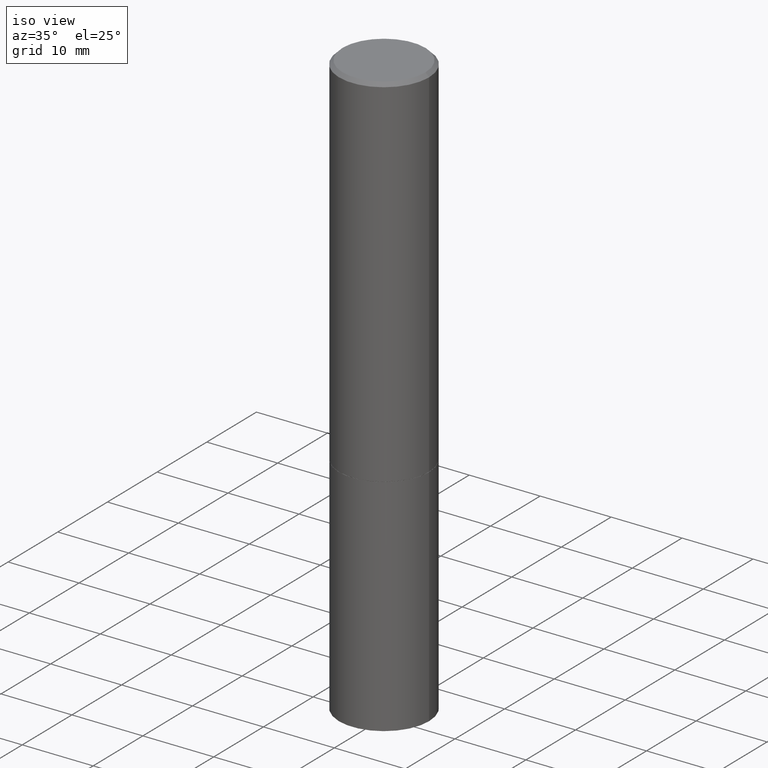
[diagram: clean part render]
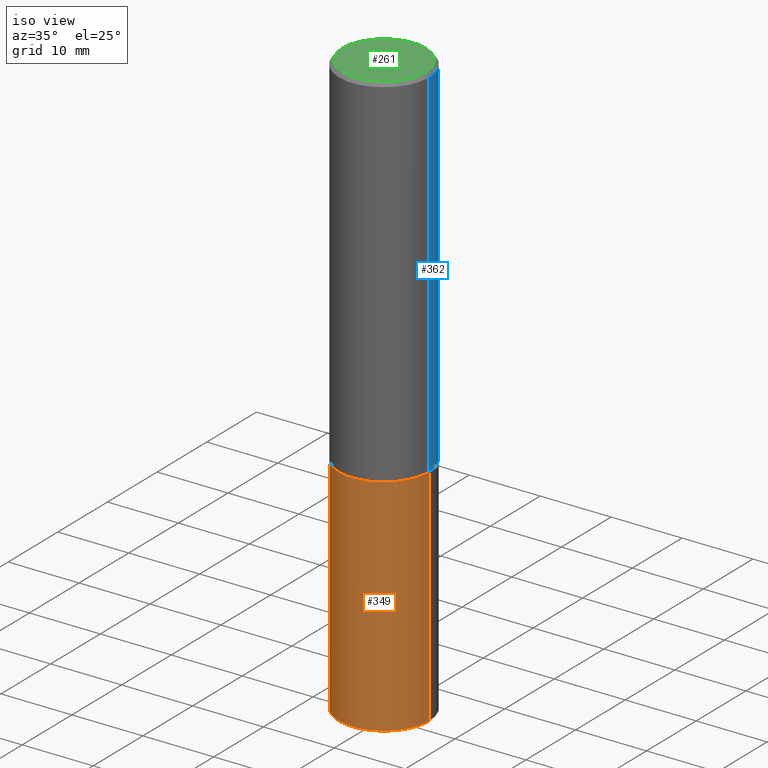
[diagram: same view with three faces highlighted in distinct colors, each labeled with its STEP entity id]
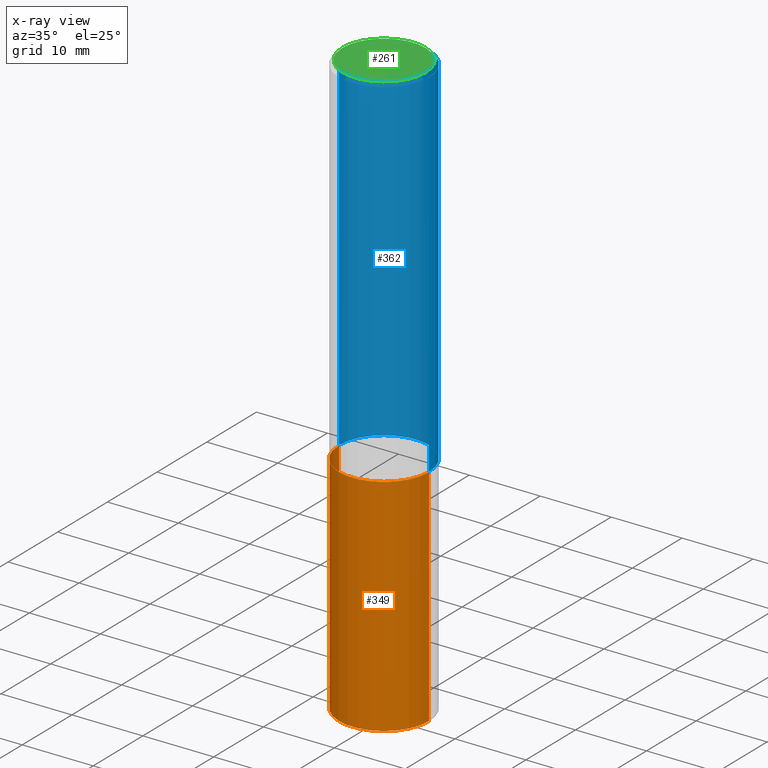
[diagram: x-ray of the same camera — body ghosted, the three highlighted faces saturated]
A machine part, iso view with three faces highlighted in distinct colors.
The next image is the same camera in x-ray (body ghosted, the three faces saturated) — at least one of them is partly hidden behind the body in this view.
Their STEP definitions:

[orange] entity #349 — the highlighted cylindrical surface (partial cylindrical patch) has radius 6.35 mm, axis along (-0, 0, 1).
#13 = DIRECTION ( 'NONE',  ( 1.000000000000000000, -6.982962677686266711E-15, 4.876176775795935793E-29 ) ) ;
#40 = ORIENTED_EDGE ( 'NONE', *, *, #145, .F. ) ;
#60 = DIRECTION ( 'NONE',  ( -2.445468806185136597E-29, 3.491481338843145583E-15, 1.000000000000000000 ) ) ;
#72 = CARTESIAN_POINT ( 'NONE',  ( -0.2500000000000000000, -7.388781675063007725E-15, -3.250000000000000000 ) ) ;
#78 = VERTEX_POINT ( 'NONE', #72 ) ;
#84 = FACE_OUTER_BOUND ( 'NONE', #284, .T. ) ;
#115 = DIRECTION ( 'NONE',  ( 1.000000000000000000, -6.982962677686262766E-15, 0.000000000000000000 ) ) ;
#126 = DIRECTION ( 'NONE',  ( -2.445468806185136877E-29, 3.491481338843145188E-15, 1.000000000000000000 ) ) ;
#137 = EDGE_CURVE ( 'NONE', #78, #157, #146, .T. ) ;
#141 = CIRCLE ( 'NONE', #326, 0.2500000000000000000 ) ;
#144 = DIRECTION ( 'NONE',  ( 1.000000000000000000, -6.982962677686266711E-15, 0.000000000000000000 ) ) ;
#145 = EDGE_CURVE ( 'NONE', #157, #348, #361, .T. ) ;
#146 = LINE ( 'NONE', #207, #320 ) ;
#157 = VERTEX_POINT ( 'NONE', #346 ) ;
#183 = LINE ( 'NONE', #249, #198 ) ;
#198 = VECTOR ( 'NONE', #126, 39.37007874015748143 ) ;
#207 = CARTESIAN_POINT ( 'NONE',  ( -0.2500000000000000000, 1.776356839400250465E-15, -1.229733772563726445E-29 ) ) ;
#210 = DIRECTION ( 'NONE',  ( -2.445468806185136597E-29, 3.491481338843145583E-15, 1.000000000000000000 ) ) ;
#216 = CYLINDRICAL_SURFACE ( 'NONE', #233, 0.2500000000000000000 ) ;
#221 = CARTESIAN_POINT ( 'NONE',  ( 7.947773620101693940E-29, -1.134731435124022443E-14, -3.250000000000000000 ) ) ;
#227 = EDGE_CURVE ( 'NONE', #78, #269, #141, .T. ) ;
#233 = AXIS2_PLACEMENT_3D ( 'NONE', #319, #60, #13 ) ;
#249 = CARTESIAN_POINT ( 'NONE',  ( 0.2500000000000000000, -1.745740669421566678E-15, 1.219044193948983948E-29 ) ) ;
#250 = CARTESIAN_POINT ( 'NONE',  ( 0.2500000000000000000, -1.309305502066178953E-14, -3.250000000000000000 ) ) ;
#263 = DIRECTION ( 'NONE',  ( -2.445468806185136877E-29, 3.491481338843145188E-15, 1.000000000000000000 ) ) ;
#269 = VERTEX_POINT ( 'NONE', #250 ) ;
#271 = CARTESIAN_POINT ( 'NONE',  ( 0.2500000000000000000, -8.728703347107857054E-15, -2.000000000000000000 ) ) ;
#284 = EDGE_LOOP ( 'NONE', ( #323, #287, #366, #40 ) ) ;
#287 = ORIENTED_EDGE ( 'NONE', *, *, #227, .T. ) ;
#312 = CARTESIAN_POINT ( 'NONE',  ( 4.890937612370273194E-29, -6.982962677686291165E-15, -2.000000000000000000 ) ) ;
#319 = CARTESIAN_POINT ( 'NONE',  ( 0.000000000000000000, 0.000000000000000000, 0.000000000000000000 ) ) ;
#320 = VECTOR ( 'NONE', #263, 39.37007874015748143 ) ;
#322 = DIRECTION ( 'NONE',  ( -2.445468806185136597E-29, 3.491481338843145583E-15, 1.000000000000000000 ) ) ;
#323 = ORIENTED_EDGE ( 'NONE', *, *, #137, .F. ) ;
#326 = AXIS2_PLACEMENT_3D ( 'NONE', #221, #322, #115 ) ;
#346 = CARTESIAN_POINT ( 'NONE',  ( -0.2500000000000000000, -7.388781675063007725E-15, -2.000000000000000000 ) ) ;
#348 = VERTEX_POINT ( 'NONE', #271 ) ;
#349 = ADVANCED_FACE ( 'NONE', ( #84 ), #216, .T. ) ;
#355 = EDGE_CURVE ( 'NONE', #269, #348, #183, .T. ) ;
#358 = AXIS2_PLACEMENT_3D ( 'NONE', #312, #210, #144 ) ;
#361 = CIRCLE ( 'NONE', #358, 0.2500000000000000000 ) ;
#366 = ORIENTED_EDGE ( 'NONE', *, *, #355, .T. ) ;

[blue] entity #362 — the highlighted cylindrical surface (partial cylindrical patch) has radius 6.35 mm, axis along (-0, 0, 1).
#3 = CARTESIAN_POINT ( 'NONE',  ( 0.2499999999999998057, -1.784954126219744611E-15, -0.02000000000000006287 ) ) ;
#5 = EDGE_LOOP ( 'NONE', ( #309, #128, #268, #63 ) ) ;
#8 = CARTESIAN_POINT ( 'NONE',  ( 0.2499999999999999167, -1.745740669421566283E-15, 1.219044193948983668E-29 ) ) ;
#37 = DIRECTION ( 'NONE',  ( -2.445468806185136597E-29, 3.491481338843145583E-15, 1.000000000000000000 ) ) ;
#43 = CIRCLE ( 'NONE', #211, 0.2499999999999998057 ) ;
#50 = CARTESIAN_POINT ( 'NONE',  ( 0.2500000000000000555, -8.725211865769014047E-15, -1.998999999999999888 ) ) ;
#54 = CARTESIAN_POINT ( 'NONE',  ( 4.888492143564087591E-29, -6.979471196347447369E-15, -1.998999999999999888 ) ) ;
#63 = ORIENTED_EDGE ( 'NONE', *, *, #295, .F. ) ;
#81 = VECTOR ( 'NONE', #300, 39.37007874015748143 ) ;
#90 = CYLINDRICAL_SURFACE ( 'NONE', #173, 0.2499999999999999167 ) ;
#122 = AXIS2_PLACEMENT_3D ( 'NONE', #54, #176, #201 ) ;
#128 = ORIENTED_EDGE ( 'NONE', *, *, #225, .T. ) ;
#148 = DIRECTION ( 'NONE',  ( -2.445468806185136877E-29, 3.491481338843145188E-15, 1.000000000000000000 ) ) ;
#149 = VERTEX_POINT ( 'NONE', #364 ) ;
#158 = EDGE_CURVE ( 'NONE', #294, #149, #43, .T. ) ;
#159 = DIRECTION ( 'NONE',  ( 1.000000000000000000, -6.982962677686267499E-15, 4.876176775795936353E-29 ) ) ;
#173 = AXIS2_PLACEMENT_3D ( 'NONE', #191, #37, #159 ) ;
#175 = CARTESIAN_POINT ( 'NONE',  ( 4.890937612370288923E-31, -6.982962677686312563E-17, -0.02000000000000006287 ) ) ;
#176 = DIRECTION ( 'NONE',  ( -2.445468806185136597E-29, 3.491481338843145583E-15, 1.000000000000000000 ) ) ;
#191 = CARTESIAN_POINT ( 'NONE',  ( 0.000000000000000000, 0.000000000000000000, 0.000000000000000000 ) ) ;
#201 = DIRECTION ( 'NONE',  ( 1.000000000000000000, -6.982962677686265133E-15, 0.000000000000000000 ) ) ;
#211 = AXIS2_PLACEMENT_3D ( 'NONE', #175, #234, #289 ) ;
#223 = VECTOR ( 'NONE', #148, 39.37007874015748143 ) ;
#225 = EDGE_CURVE ( 'NONE', #243, #149, #246, .T. ) ;
#234 = DIRECTION ( 'NONE',  ( -2.445468806185136597E-29, 3.491481338843145583E-15, 1.000000000000000000 ) ) ;
#242 = LINE ( 'NONE', #8, #81 ) ;
#243 = VERTEX_POINT ( 'NONE', #286 ) ;
#246 = LINE ( 'NONE', #353, #223 ) ;
#247 = CIRCLE ( 'NONE', #122, 0.2500000000000000555 ) ;
#254 = EDGE_CURVE ( 'NONE', #266, #243, #247, .T. ) ;
#266 = VERTEX_POINT ( 'NONE', #50 ) ;
#268 = ORIENTED_EDGE ( 'NONE', *, *, #158, .F. ) ;
#286 = CARTESIAN_POINT ( 'NONE',  ( -0.2500000000000000555, -1.748293572161903489E-15, -1.998999999999999888 ) ) ;
#289 = DIRECTION ( 'NONE',  ( 1.000000000000000000, -6.982962677686266711E-15, 0.000000000000000000 ) ) ;
#294 = VERTEX_POINT ( 'NONE', #3 ) ;
#295 = EDGE_CURVE ( 'NONE', #266, #294, #242, .T. ) ;
#300 = DIRECTION ( 'NONE',  ( -2.445468806185136877E-29, 3.491481338843145188E-15, 1.000000000000000000 ) ) ;
#309 = ORIENTED_EDGE ( 'NONE', *, *, #254, .T. ) ;
#325 = FACE_OUTER_BOUND ( 'NONE', #5, .T. ) ;
#353 = CARTESIAN_POINT ( 'NONE',  ( -0.2499999999999999167, 1.776356839400249873E-15, -1.229733772563726165E-29 ) ) ;
#362 = ADVANCED_FACE ( 'NONE', ( #325 ), #90, .T. ) ;
#364 = CARTESIAN_POINT ( 'NONE',  ( -0.2499999999999998057, 1.675911042644702196E-15, -0.02000000000000006287 ) ) ;

[green] entity #261 — the highlighted planar face has unit normal (0, -0, -1).
#31 = ORIENTED_EDGE ( 'NONE', *, *, #215, .T. ) ;
#52 = VERTEX_POINT ( 'NONE', #169 ) ;
#62 = CARTESIAN_POINT ( 'NONE',  ( 7.306959900346538153E-46, -1.043240219266313067E-31, -2.987958743070287587E-17 ) ) ;
#87 = CARTESIAN_POINT ( 'NONE',  ( 7.306959900346538153E-46, -1.043240219266313067E-31, -2.987958743070287587E-17 ) ) ;
#89 = CIRCLE ( 'NONE', #340, 0.2299999999999998435 ) ;
#93 = VERTEX_POINT ( 'NONE', #282 ) ;
#113 = PLANE ( 'NONE',  #265 ) ;
#119 = DIRECTION ( 'NONE',  ( 1.000000000000000000, -6.982962677686266711E-15, 4.875813741439103137E-29 ) ) ;
#131 = ORIENTED_EDGE ( 'NONE', *, *, #206, .T. ) ;
#142 = FACE_OUTER_BOUND ( 'NONE', #184, .T. ) ;
#169 = CARTESIAN_POINT ( 'NONE',  ( 0.2299999999999998435, -1.681434332853597631E-15, -2.987958743069138192E-17 ) ) ;
#172 = DIRECTION ( 'NONE',  ( 2.438088387897960049E-29, -3.491481338843145188E-15, -1.000000000000000000 ) ) ;
#184 = EDGE_LOOP ( 'NONE', ( #131, #31 ) ) ;
#185 = DIRECTION ( 'NONE',  ( 1.000000000000000000, -6.982962677686266711E-15, 4.875813741439103137E-29 ) ) ;
#206 = EDGE_CURVE ( 'NONE', #93, #52, #262, .T. ) ;
#215 = EDGE_CURVE ( 'NONE', #52, #93, #89, .T. ) ;
#258 = CARTESIAN_POINT ( 'NONE',  ( 1.606081415867840081E-15, 0.2299999999999998435, -8.179805016492743936E-16 ) ) ;
#261 = ADVANCED_FACE ( 'NONE', ( #142 ), #113, .F. ) ;
#262 = CIRCLE ( 'NONE', #345, 0.2299999999999998435 ) ;
#265 = AXIS2_PLACEMENT_3D ( 'NONE', #258, #172, #342 ) ;
#282 = CARTESIAN_POINT ( 'NONE',  ( -0.2299999999999998435, 1.640996229256271139E-15, -2.987958743071423423E-17 ) ) ;
#290 = DIRECTION ( 'NONE',  ( -2.445468806185136597E-29, 3.491481338843145583E-15, 1.000000000000000000 ) ) ;
#340 = AXIS2_PLACEMENT_3D ( 'NONE', #62, #290, #185 ) ;
#342 = DIRECTION ( 'NONE',  ( -1.000000000000000000, 6.982962677686265922E-15, -4.876176775795935793E-29 ) ) ;
#345 = AXIS2_PLACEMENT_3D ( 'NONE', #87, #365, #119 ) ;
#365 = DIRECTION ( 'NONE',  ( -2.445468806185136597E-29, 3.491481338843145583E-15, 1.000000000000000000 ) ) ;